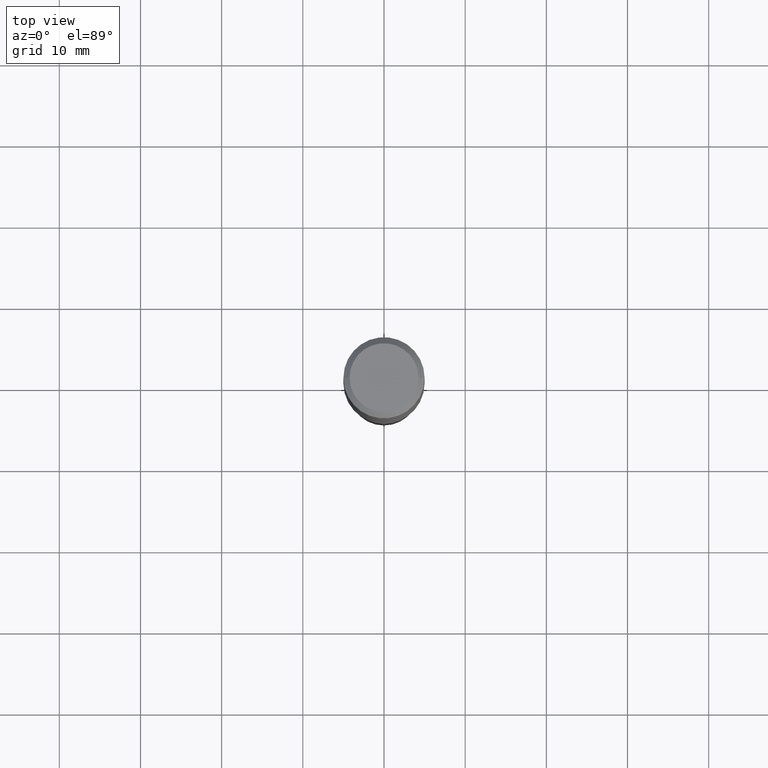
[diagram: clean part render]
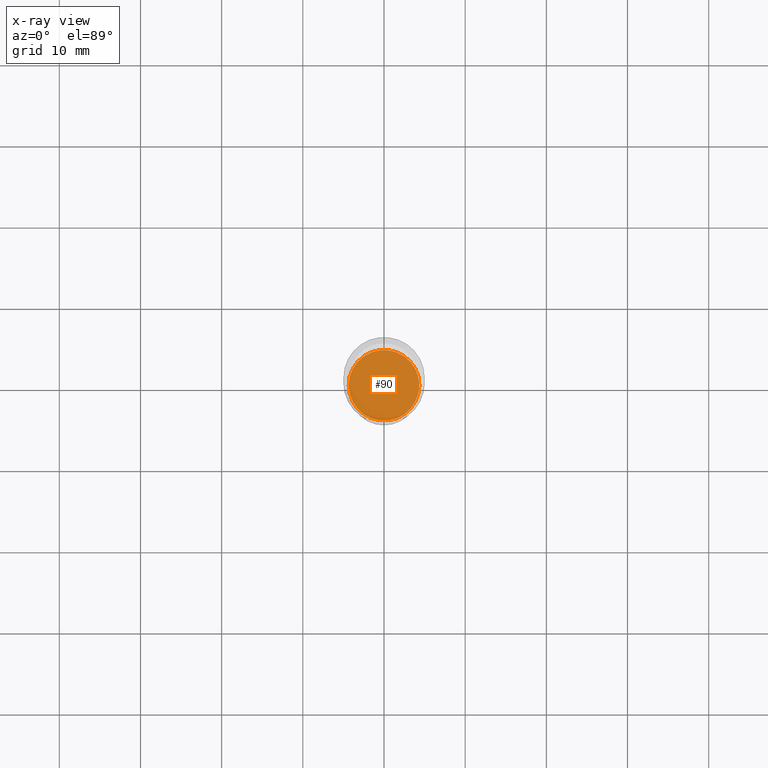
[diagram: x-ray — body ghosted, one internal face saturated and labeled with its STEP entity id]
A machine part, top view, then the same camera in x-ray: the body is ghosted and one INTERNAL B-rep face — a face not visible from any outside direction — is saturated and labeled: STEP entity #90.
In plain terms, the highlighted planar face has unit normal (-0, 0, 1).
Its self-contained STEP definition (entity closure, byte-faithful):
#18 = CARTESIAN_POINT ( 'NONE',  ( 5.198822135068982087E-29, -7.422540178246643119E-15, -2.125899999999999679 ) ) ;
#22 = VERTEX_POINT ( 'NONE', #285 ) ;
#59 = CARTESIAN_POINT ( 'NONE',  ( 5.198822135068982087E-29, -7.422540178246643119E-15, -2.125899999999999679 ) ) ;
#90 = ADVANCED_FACE ( 'NONE', ( #485 ), #358, .F. ) ;
#100 = CIRCLE ( 'NONE', #150, 0.1713999999999999690 ) ;
#115 = EDGE_LOOP ( 'NONE', ( #411, #399 ) ) ;
#150 = AXIS2_PLACEMENT_3D ( 'NONE', #59, #288, #325 ) ;
#169 = DIRECTION ( 'NONE',  ( 1.000000000000000000, -6.982962677686265922E-15, 4.876176775795935793E-29 ) ) ;
#218 = EDGE_CURVE ( 'NONE', #354, #22, #341, .T. ) ;
#243 = DIRECTION ( 'NONE',  ( 1.000000000000000000, -6.982962677686265133E-15, 0.000000000000000000 ) ) ;
#248 = CARTESIAN_POINT ( 'NONE',  ( 0.1713999999999999690, -8.619419981202068564E-15, -2.125899999999999679 ) ) ;
#285 = CARTESIAN_POINT ( 'NONE',  ( -0.1713999999999999690, -6.202020701979720222E-15, -2.125899999999999679 ) ) ;
#288 = DIRECTION ( 'NONE',  ( -2.445468806185136597E-29, 3.491481338843145583E-15, 1.000000000000000000 ) ) ;
#297 = DIRECTION ( 'NONE',  ( -2.445468806185136597E-29, 3.491481338843145583E-15, 1.000000000000000000 ) ) ;
#322 = CARTESIAN_POINT ( 'NONE',  ( 5.198822135068982087E-29, -7.422540178246643119E-15, -2.125899999999999679 ) ) ;
#325 = DIRECTION ( 'NONE',  ( 1.000000000000000000, -6.982962677686265133E-15, 0.000000000000000000 ) ) ;
#341 = CIRCLE ( 'NONE', #461, 0.1713999999999999690 ) ;
#354 = VERTEX_POINT ( 'NONE', #248 ) ;
#358 = PLANE ( 'NONE',  #491 ) ;
#375 = EDGE_CURVE ( 'NONE', #22, #354, #100, .T. ) ;
#399 = ORIENTED_EDGE ( 'NONE', *, *, #375, .F. ) ;
#411 = ORIENTED_EDGE ( 'NONE', *, *, #218, .F. ) ;
#442 = DIRECTION ( 'NONE',  ( -2.438088387897960049E-29, 3.491481338843145188E-15, 1.000000000000000000 ) ) ;
#461 = AXIS2_PLACEMENT_3D ( 'NONE', #322, #297, #243 ) ;
#485 = FACE_OUTER_BOUND ( 'NONE', #115, .T. ) ;
#491 = AXIS2_PLACEMENT_3D ( 'NONE', #18, #442, #169 ) ;